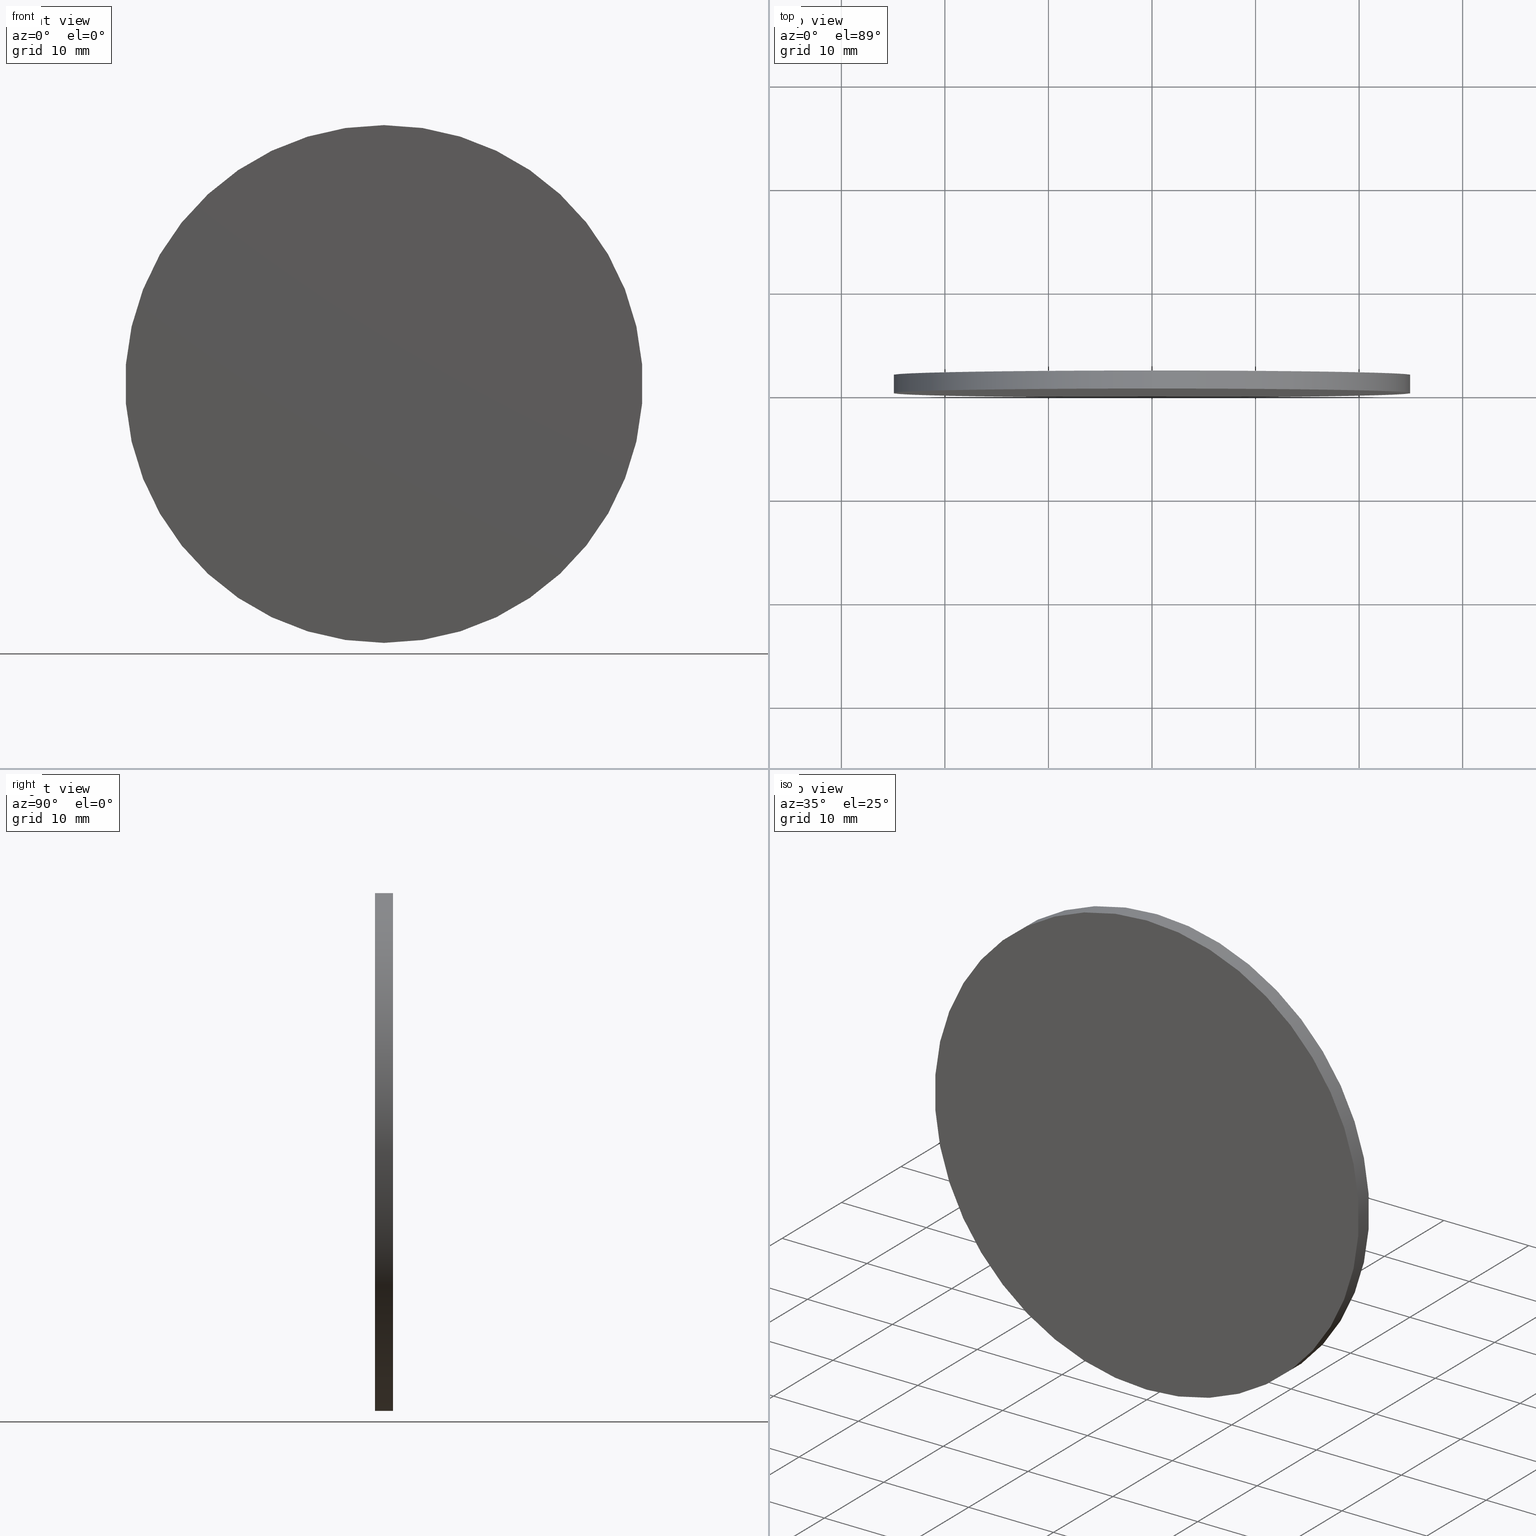
[diagram: canonical four-view strip — front | top / right | iso, engineering-drawing reading convention]
A machine part, canonical four-view strip (front | top / right | iso — engineering-drawing reading convention). The complete STEP part file that produces these views, byte-faithful:
ISO-10303-21;
HEADER;
FILE_DESCRIPTION (( 'STEP AP214' ),
    '1' );
FILE_NAME ('248599.STEP',
    '2019-08-06T05:25:25',
    ( 'user' ),
    ( '΢���й�' ),
    'SwSTEP 2.0',
    'SolidWorks 2016',
    '' );
FILE_SCHEMA (( 'AUTOMOTIVE_DESIGN' ));
ENDSEC;

DATA;
#1 = SURFACE_STYLE_FILL_AREA ( #83 ) ;
#2 = DIRECTION ( 'NONE',  ( 0.0000000000000000000, 0.0000000000000000000, -1.000000000000000000 ) ) ;
#3 = ORIENTED_EDGE ( 'NONE', *, *, #80, .F. ) ;
#4 = EDGE_CURVE ( 'NONE', #27, #135, #82, .T. ) ;
#5 = UNCERTAINTY_MEASURE_WITH_UNIT (LENGTH_MEASURE( 1.000000000000000100E-005 ), #97, 'distance_accuracy_value', 'NONE');
#6 = PRODUCT_DEFINITION_SHAPE ( 'NONE', 'NONE',  #72 ) ;
#7 = ADVANCED_FACE ( 'NONE', ( #54 ), #58, .F. ) ;
#8 = ORIENTED_EDGE ( 'NONE', *, *, #4, .F. ) ;
#9 =( GEOMETRIC_REPRESENTATION_CONTEXT ( 3 ) GLOBAL_UNCERTAINTY_ASSIGNED_CONTEXT ( ( #50 ) ) GLOBAL_UNIT_ASSIGNED_CONTEXT ( ( #67, #61, #40 ) ) REPRESENTATION_CONTEXT ( 'NONE', 'WORKASPACE' ) );
#10 = ADVANCED_FACE ( 'NONE', ( #127 ), #111, .T. ) ;
#11 = AXIS2_PLACEMENT_3D ( 'NONE', #41, #112, #94 ) ;
#12 = ORIENTED_EDGE ( 'NONE', *, *, #126, .T. ) ;
#13 = SURFACE_STYLE_USAGE ( .BOTH. , #81 ) ;
#14 = DIRECTION ( 'NONE',  ( 0.0000000000000000000, 1.000000000000000000, 0.0000000000000000000 ) ) ;
#15 = DIRECTION ( 'NONE',  ( -0.0000000000000000000, -1.000000000000000000, -0.0000000000000000000 ) ) ;
#16 = DIRECTION ( 'NONE',  ( 0.0000000000000000000, -0.0000000000000000000, 1.000000000000000000 ) ) ;
#17 = LINE ( 'NONE', #86, #77 ) ;
#18 = CARTESIAN_POINT ( 'NONE',  ( 0.0000000000000000000, 1.740000000000000000, 0.0000000000000000000 ) ) ;
#19 = DIRECTION ( 'NONE',  ( -0.0000000000000000000, -1.000000000000000000, -0.0000000000000000000 ) ) ;
#20 = CARTESIAN_POINT ( 'NONE',  ( 0.0000000000000000000, 1.740000000000000000, 0.0000000000000000000 ) ) ;
#21 = ORIENTED_EDGE ( 'NONE', *, *, #32, .T. ) ;
#22 = PRODUCT_DEFINITION_CONTEXT ( 'detailed design', #68, 'design' ) ;
#23 = CARTESIAN_POINT ( 'NONE',  ( 0.0000000000000000000, 1.740000000000000000, 0.0000000000000000000 ) ) ;
#24 = DIRECTION ( 'NONE',  ( 0.0000000000000000000, 1.000000000000000000, 0.0000000000000000000 ) ) ;
#25 = ORIENTED_EDGE ( 'NONE', *, *, #113, .F. ) ;
#26 = AXIS2_PLACEMENT_3D ( 'NONE', #23, #15, #39 ) ;
#27 = VERTEX_POINT ( 'NONE', #90 ) ;
#28 = ADVANCED_BREP_SHAPE_REPRESENTATION ( '248599', ( #100, #11 ), #9 ) ;
#29 = DIRECTION ( 'NONE',  ( -0.0000000000000000000, -1.000000000000000000, -0.0000000000000000000 ) ) ;
#30 = VERTEX_POINT ( 'NONE', #51 ) ;
#31 = CARTESIAN_POINT ( 'NONE',  ( 0.0000000000000000000, 0.0000000000000000000, 0.0000000000000000000 ) ) ;
#32 = EDGE_CURVE ( 'NONE', #27, #30, #138, .T. ) ;
#33 =( LENGTH_UNIT ( ) NAMED_UNIT ( * ) SI_UNIT ( .MILLI., .METRE. ) );
#34 = ORIENTED_EDGE ( 'NONE', *, *, #107, .F. ) ;
#35 = AXIS2_PLACEMENT_3D ( 'NONE', #139, #24, #103 ) ;
#36 = CIRCLE ( 'NONE', #69, 25.00000000000000000 ) ;
#37 = VERTEX_POINT ( 'NONE', #52 ) ;
#38 = DIRECTION ( 'NONE',  ( 0.0000000000000000000, 0.0000000000000000000, 1.000000000000000000 ) ) ;
#39 = DIRECTION ( 'NONE',  ( 0.0000000000000000000, 0.0000000000000000000, -1.000000000000000000 ) ) ;
#40 =( NAMED_UNIT ( * ) SI_UNIT ( $, .STERADIAN. ) SOLID_ANGLE_UNIT ( ) );
#41 = CARTESIAN_POINT ( 'NONE',  ( 0.0000000000000000000, 0.0000000000000000000, 0.0000000000000000000 ) ) ;
#42 = ORIENTED_EDGE ( 'NONE', *, *, #4, .T. ) ;
#43 = ORIENTED_EDGE ( 'NONE', *, *, #126, .F. ) ;
#44 = DIRECTION ( 'NONE',  ( 0.0000000000000000000, 0.0000000000000000000, 1.000000000000000000 ) ) ;
#45 = PLANE ( 'NONE',  #53 ) ;
#46 =( NAMED_UNIT ( * ) PLANE_ANGLE_UNIT ( ) SI_UNIT ( $, .RADIAN. ) );
#47 = APPLICATION_CONTEXT ( 'automotive_design' ) ;
#48 = FILL_AREA_STYLE ('',( #96 ) ) ;
#49 = EDGE_LOOP ( 'NONE', ( #43, #34 ) ) ;
#50 = UNCERTAINTY_MEASURE_WITH_UNIT (LENGTH_MEASURE( 1.000000000000000100E-005 ), #67, 'distance_accuracy_value', 'NONE');
#51 = CARTESIAN_POINT ( 'NONE',  ( 3.061616997868383000E-015, 0.0000000000000000000, 25.00000000000000000 ) ) ;
#52 = CARTESIAN_POINT ( 'NONE',  ( 0.0000000000000000000, 0.0000000000000000000, -25.00000000000000000 ) ) ;
#53 = AXIS2_PLACEMENT_3D ( 'NONE', #20, #14, #16 ) ;
#54 = FACE_OUTER_BOUND ( 'NONE', #49, .T. ) ;
#55 = CLOSED_SHELL ( 'NONE', ( #65, #10, #64, #7 ) ) ;
#56 = DIRECTION ( 'NONE',  ( 0.0000000000000000000, 1.000000000000000000, 0.0000000000000000000 ) ) ;
#57 = SHAPE_DEFINITION_REPRESENTATION ( #6, #28 ) ;
#58 = PLANE ( 'NONE',  #35 ) ;
#59 = APPLICATION_PROTOCOL_DEFINITION ( 'draft international standard', 'automotive_design', 1998, #47 ) ;
#60 = ORIENTED_EDGE ( 'NONE', *, *, #107, .T. ) ;
#61 =( NAMED_UNIT ( * ) PLANE_ANGLE_UNIT ( ) SI_UNIT ( $, .RADIAN. ) );
#62 = APPLICATION_PROTOCOL_DEFINITION ( 'draft international standard', 'automotive_design', 1998, #68 ) ;
#63 = COLOUR_RGB ( '',1.000000000000000000, 1.000000000000000000, 1.000000000000000000 ) ;
#64 = ADVANCED_FACE ( 'NONE', ( #131 ), #45, .T. ) ;
#65 = ADVANCED_FACE ( 'NONE', ( #70 ), #71, .T. ) ;
#66 = ORIENTED_EDGE ( 'NONE', *, *, #32, .F. ) ;
#67 =( LENGTH_UNIT ( ) NAMED_UNIT ( * ) SI_UNIT ( .MILLI., .METRE. ) );
#68 = APPLICATION_CONTEXT ( 'automotive_design' ) ;
#69 = AXIS2_PLACEMENT_3D ( 'NONE', #108, #106, #38 ) ;
#70 = FACE_OUTER_BOUND ( 'NONE', #114, .T. ) ;
#71 = CYLINDRICAL_SURFACE ( 'NONE', #75, 25.00000000000000000 ) ;
#72 = PRODUCT_DEFINITION ( 'δ֪', '', #78, #22 ) ;
#73 = MECHANICAL_DESIGN_GEOMETRIC_PRESENTATION_REPRESENTATION (  '', ( #98 ), #79 ) ;
#74 = UNCERTAINTY_MEASURE_WITH_UNIT (LENGTH_MEASURE( 1.000000000000000100E-005 ), #33, 'distance_accuracy_value', 'NONE');
#75 = AXIS2_PLACEMENT_3D ( 'NONE', #18, #19, #2 ) ;
#76 = CARTESIAN_POINT ( 'NONE',  ( 0.0000000000000000000, 0.0000000000000000000, 0.0000000000000000000 ) ) ;
#77 = VECTOR ( 'NONE', #29, 1000.000000000000000 ) ;
#78 = PRODUCT_DEFINITION_FORMATION_WITH_SPECIFIED_SOURCE ( '�κ�', '', #89, .NOT_KNOWN. ) ;
#79 =( GEOMETRIC_REPRESENTATION_CONTEXT ( 3 ) GLOBAL_UNCERTAINTY_ASSIGNED_CONTEXT ( ( #5 ) ) GLOBAL_UNIT_ASSIGNED_CONTEXT ( ( #97, #125, #95 ) ) REPRESENTATION_CONTEXT ( 'NONE', 'WORKASPACE' ) );
#80 = EDGE_CURVE ( 'NONE', #135, #37, #17, .T. ) ;
#81 = SURFACE_SIDE_STYLE ('',( #91 ) ) ;
#82 = CIRCLE ( 'NONE', #120, 25.00000000000000000 ) ;
#83 = FILL_AREA_STYLE ('',( #137 ) ) ;
#84 = COLOUR_RGB ( '',1.000000000000000000, 1.000000000000000000, 1.000000000000000000 ) ;
#85 = AXIS2_PLACEMENT_3D ( 'NONE', #31, #123, #116 ) ;
#86 = CARTESIAN_POINT ( 'NONE',  ( 0.0000000000000000000, 1.740000000000000000, -25.00000000000000000 ) ) ;
#87 = DIRECTION ( 'NONE',  ( 0.0000000000000000000, 0.0000000000000000000, 1.000000000000000000 ) ) ;
#88 = DIRECTION ( 'NONE',  ( 0.0000000000000000000, 1.000000000000000000, 0.0000000000000000000 ) ) ;
#89 = PRODUCT ( '248599', '248599', '', ( #132 ) ) ;
#90 = CARTESIAN_POINT ( 'NONE',  ( 3.061616997868383000E-015, 1.740000000000000000, 25.00000000000000000 ) ) ;
#91 = SURFACE_STYLE_FILL_AREA ( #48 ) ;
#92 = DIRECTION ( 'NONE',  ( -0.0000000000000000000, -1.000000000000000000, -0.0000000000000000000 ) ) ;
#93 = SURFACE_STYLE_USAGE ( .BOTH. , #105 ) ;
#94 = DIRECTION ( 'NONE',  ( 1.000000000000000000, 0.0000000000000000000, 0.0000000000000000000 ) ) ;
#95 =( NAMED_UNIT ( * ) SI_UNIT ( $, .STERADIAN. ) SOLID_ANGLE_UNIT ( ) );
#96 = FILL_AREA_STYLE_COLOUR ( '', #84 ) ;
#97 =( LENGTH_UNIT ( ) NAMED_UNIT ( * ) SI_UNIT ( .MILLI., .METRE. ) );
#98 = STYLED_ITEM ( 'NONE', ( #124 ), #28 ) ;
#99 = PRESENTATION_STYLE_ASSIGNMENT (( #13 ) ) ;
#100 = MANIFOLD_SOLID_BREP ( '͹̨-����1', #55 ) ;
#101 = PRESENTATION_LAYER_ASSIGNMENT (  '', '', ( #140 ) ) ;
#102 = ORIENTED_EDGE ( 'NONE', *, *, #80, .T. ) ;
#103 = DIRECTION ( 'NONE',  ( 0.0000000000000000000, -0.0000000000000000000, 1.000000000000000000 ) ) ;
#104 = EDGE_LOOP ( 'NONE', ( #66, #25, #102, #12 ) ) ;
#105 = SURFACE_SIDE_STYLE ('',( #1 ) ) ;
#106 = DIRECTION ( 'NONE',  ( 0.0000000000000000000, 1.000000000000000000, 0.0000000000000000000 ) ) ;
#107 = EDGE_CURVE ( 'NONE', #30, #37, #136, .T. ) ;
#108 = CARTESIAN_POINT ( 'NONE',  ( 0.0000000000000000000, 1.740000000000000000, 0.0000000000000000000 ) ) ;
#109 =( GEOMETRIC_REPRESENTATION_CONTEXT ( 3 ) GLOBAL_UNCERTAINTY_ASSIGNED_CONTEXT ( ( #74 ) ) GLOBAL_UNIT_ASSIGNED_CONTEXT ( ( #33, #46, #128 ) ) REPRESENTATION_CONTEXT ( 'NONE', 'WORKASPACE' ) );
#110 = PRESENTATION_LAYER_ASSIGNMENT (  '', '', ( #98 ) ) ;
#111 = CYLINDRICAL_SURFACE ( 'NONE', #26, 25.00000000000000000 ) ;
#112 = DIRECTION ( 'NONE',  ( 0.0000000000000000000, 0.0000000000000000000, 1.000000000000000000 ) ) ;
#113 = EDGE_CURVE ( 'NONE', #135, #27, #36, .T. ) ;
#114 = EDGE_LOOP ( 'NONE', ( #8, #21, #60, #3 ) ) ;
#115 = CIRCLE ( 'NONE', #122, 25.00000000000000000 ) ;
#116 = DIRECTION ( 'NONE',  ( 0.0000000000000000000, 0.0000000000000000000, 1.000000000000000000 ) ) ;
#117 = MECHANICAL_DESIGN_GEOMETRIC_PRESENTATION_REPRESENTATION (  '', ( #140 ), #109 ) ;
#118 = PRODUCT_RELATED_PRODUCT_CATEGORY ( 'part', '', ( #89 ) ) ;
#119 = ORIENTED_EDGE ( 'NONE', *, *, #113, .T. ) ;
#120 = AXIS2_PLACEMENT_3D ( 'NONE', #133, #88, #44 ) ;
#121 = VECTOR ( 'NONE', #92, 1000.000000000000000 ) ;
#122 = AXIS2_PLACEMENT_3D ( 'NONE', #76, #56, #87 ) ;
#123 = DIRECTION ( 'NONE',  ( 0.0000000000000000000, 1.000000000000000000, 0.0000000000000000000 ) ) ;
#124 = PRESENTATION_STYLE_ASSIGNMENT (( #93 ) ) ;
#125 =( NAMED_UNIT ( * ) PLANE_ANGLE_UNIT ( ) SI_UNIT ( $, .RADIAN. ) );
#126 = EDGE_CURVE ( 'NONE', #37, #30, #115, .T. ) ;
#127 = FACE_OUTER_BOUND ( 'NONE', #104, .T. ) ;
#128 =( NAMED_UNIT ( * ) SI_UNIT ( $, .STERADIAN. ) SOLID_ANGLE_UNIT ( ) );
#129 = CARTESIAN_POINT ( 'NONE',  ( 0.0000000000000000000, 1.740000000000000000, -25.00000000000000000 ) ) ;
#130 = EDGE_LOOP ( 'NONE', ( #119, #42 ) ) ;
#131 = FACE_OUTER_BOUND ( 'NONE', #130, .T. ) ;
#132 = PRODUCT_CONTEXT ( 'NONE', #47, 'mechanical' ) ;
#133 = CARTESIAN_POINT ( 'NONE',  ( 0.0000000000000000000, 1.740000000000000000, 0.0000000000000000000 ) ) ;
#134 = CARTESIAN_POINT ( 'NONE',  ( 3.061616997868383000E-015, 1.740000000000000000, 25.00000000000000000 ) ) ;
#135 = VERTEX_POINT ( 'NONE', #129 ) ;
#136 = CIRCLE ( 'NONE', #85, 25.00000000000000000 ) ;
#137 = FILL_AREA_STYLE_COLOUR ( '', #63 ) ;
#138 = LINE ( 'NONE', #134, #121 ) ;
#139 = CARTESIAN_POINT ( 'NONE',  ( 0.0000000000000000000, 0.0000000000000000000, 0.0000000000000000000 ) ) ;
#140 = STYLED_ITEM ( 'NONE', ( #99 ), #100 ) ;
ENDSEC;
END-ISO-10303-21;
